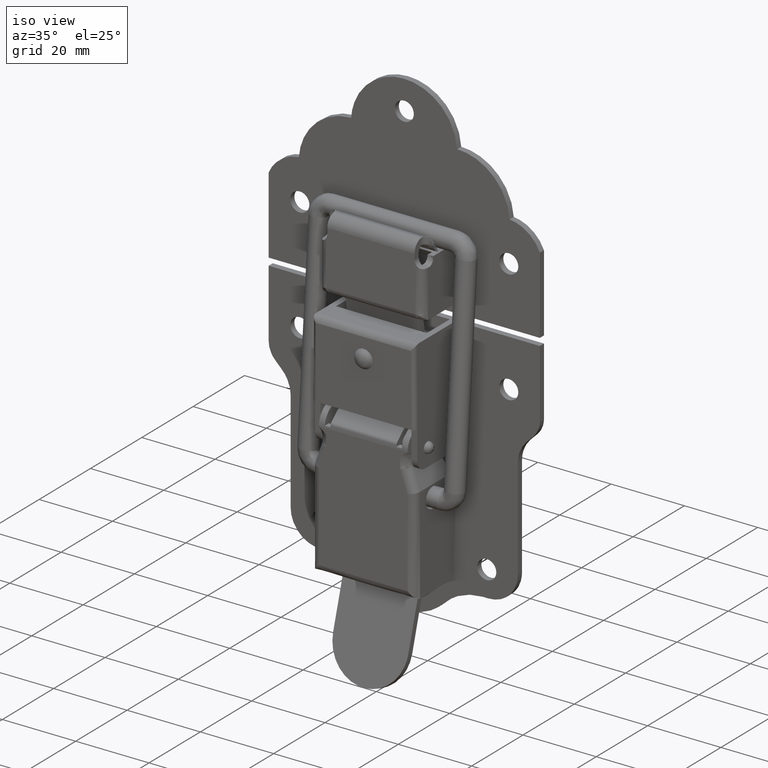
[diagram: clean part render]
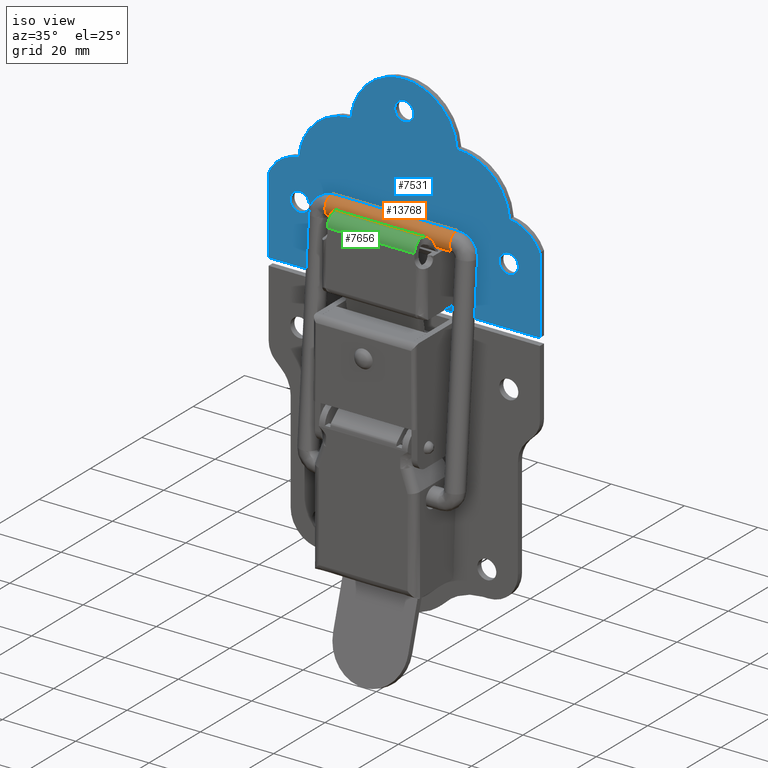
[diagram: same view with three faces highlighted in distinct colors, each labeled with its STEP entity id]
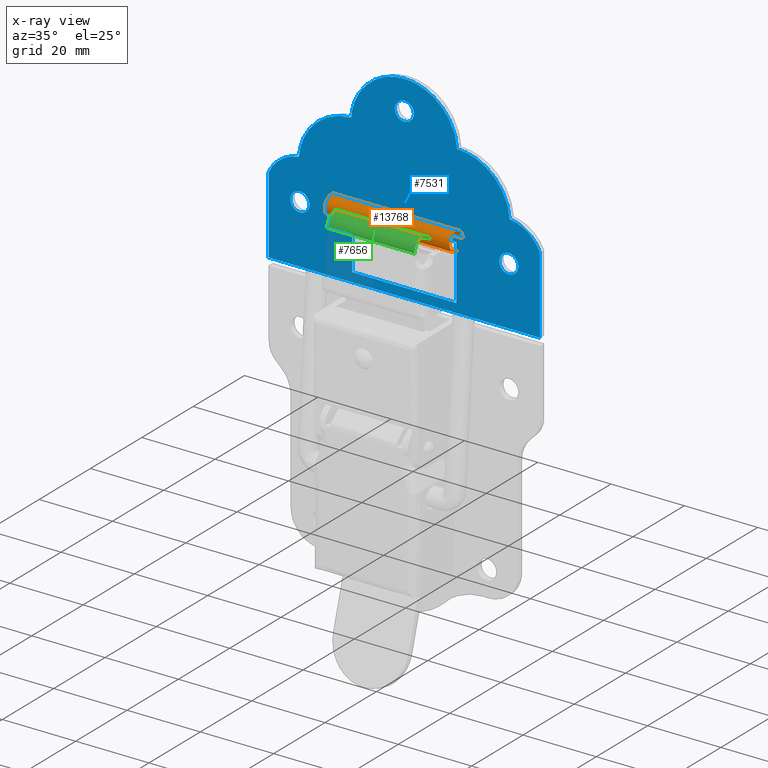
[diagram: x-ray of the same camera — body ghosted, the three highlighted faces saturated]
A machine part, iso view with three faces highlighted in distinct colors.
The next image is the same camera in x-ray (body ghosted, the three faces saturated) — at least one of them is partly hidden behind the body in this view.
Their STEP definitions:

[orange] entity #13768 — the highlighted face is a freeform B-spline surface patch.
#13595=CARTESIAN_POINT('',(16.999699999266898,9.268723217561934,48.804099728044733));
#13596=VERTEX_POINT('',#13595);
#13597=CARTESIAN_POINT('',(16.999699995442310,7.321456137218782,46.560133136138226));
#13598=VERTEX_POINT('',#13597);
#13614=CARTESIAN_POINT('',(-16.999999999998600,7.321188846626860,46.561323441497443));
#13615=VERTEX_POINT('',#13614);
#13616=CARTESIAN_POINT('',(-16.999999999998600,7.321188846626860,46.561323441497443));
#13617=CARTESIAN_POINT('',(16.999699995442310,7.321456137218782,46.560133136138226));
#13618=QUASI_UNIFORM_CURVE('',1,(#13616,#13617),.UNSPECIFIED.,.F.,.U.);
#13619=EDGE_CURVE('',#13615,#13598,#13618,.T.);
#13621=CARTESIAN_POINT('',(-16.999999999998600,9.268601316774911,48.804109904151332));
#13622=VERTEX_POINT('',#13621);
#13634=CARTESIAN_POINT('',(-16.999999999998600,9.268601316774911,48.804109904151332));
#13635=CARTESIAN_POINT('',(16.999699999266898,9.268723217561934,48.804099728044733));
#13636=QUASI_UNIFORM_CURVE('',1,(#13634,#13635),.UNSPECIFIED.,.F.,.U.);
#13637=EDGE_CURVE('',#13622,#13596,#13636,.T.);
#13642=CARTESIAN_POINT('',(-17.849992499998599,9.268754588178384,48.804097067245699));
#13643=CARTESIAN_POINT('',(-17.849992499998592,9.464657521159097,51.296409656157756));
#13644=CARTESIAN_POINT('',(-17.849992499998599,6.972344932247031,51.492312589138471));
#13645=CARTESIAN_POINT('',(-17.849992499998592,4.480032343334968,51.688215522119179));
#13646=CARTESIAN_POINT('',(-17.849992499998599,4.284129410354257,49.195902933207122));
#13647=CARTESIAN_POINT('',(-17.849992499998592,4.088226477373548,46.703590344295051));
#13648=CARTESIAN_POINT('',(-17.849992499998599,6.580539066285610,46.507687411314343));
#13649=CARTESIAN_POINT('',(-17.849992499998603,6.954937016954593,46.478258656284048));
#13650=CARTESIAN_POINT('',(-17.849992499998599,7.321456776956738,46.560131378333196));
#13651=CARTESIAN_POINT('',(17.870942312501409,9.268754588178384,48.804097067245699));
#13652=CARTESIAN_POINT('',(17.870942312501413,9.464657521159097,51.296409656157756));
#13653=CARTESIAN_POINT('',(17.870942312501409,6.972344932247031,51.492312589138471));
#13654=CARTESIAN_POINT('',(17.870942312501413,4.480032343334968,51.688215522119179));
#13655=CARTESIAN_POINT('',(17.870942312501409,4.284129410354257,49.195902933207122));
#13656=CARTESIAN_POINT('',(17.870942312501413,4.088226477373548,46.703590344295051));
#13657=CARTESIAN_POINT('',(17.870942312501409,6.580539066285610,46.507687411314343));
#13658=CARTESIAN_POINT('',(17.870942312501398,6.954937016954593,46.478258656284048));
#13659=CARTESIAN_POINT('',(17.870942312501406,7.321456776956738,46.560131378333196));
#13667=(BOUNDED_SURFACE()B_SPLINE_SURFACE(2,1,((#13642,#13651),(#13643,#13652),(#13644,#13653),(#13645,#13654),(#13646,#13655),(#13647,#13656),(#13648,#13657),(#13649,#13658),(#13650,#13659)),.UNSPECIFIED.,.F.,.F.,.U.)B_SPLINE_SURFACE_WITH_KNOTS((3,2,2,2,3),(2,2),(0.0,4.142135623730948,8.284271247461895,12.426406871192841,13.254833995939030),(0.0,35.720934812500012),.UNSPECIFIED.)GEOMETRIC_REPRESENTATION_ITEM()RATIONAL_B_SPLINE_SURFACE(((1.0,1.0),(0.707106781186548,0.707106781186548),(1.0,1.0),(0.707106781186548,0.707106781186548),(1.0,1.0),(0.707106781186548,0.707106781186548),(1.0,1.0),(0.941421356237310,0.941421356237310),(0.906274169979695,0.906274169979695)))REPRESENTATION_ITEM('')SURFACE());
#13668=CARTESIAN_POINT('',(16.999700000001400,6.385598377650863,46.530740746230812));
#13669=VERTEX_POINT('',#13668);
#13670=CARTESIAN_POINT('',(16.999699995442310,7.321456137218782,46.560133136138226));
#13671=CARTESIAN_POINT('',(16.999699996943999,7.015043462273784,46.491745111019704));
#13672=CARTESIAN_POINT('',(16.999699998499722,6.695697853314921,46.481656462202537));
#13673=CARTESIAN_POINT('',(16.999700000001400,6.385598377650863,46.530740746230812));
#13674=B_SPLINE_CURVE_WITH_KNOTS('',3,(#13670,#13671,#13672,#13673),.UNSPECIFIED.,.F.,.U.,(4,4),(0.940038078456042,1.0),.UNSPECIFIED.);
#13675=EDGE_CURVE('',#13598,#13669,#13674,.T.);
#13676=ORIENTED_EDGE('',*,*,#13675,.T.);
#13677=CARTESIAN_POINT('',(16.999700000001400,4.708916216458925,47.594594149053982));
#13678=VERTEX_POINT('',#13677);
#13679=CARTESIAN_POINT('',(16.999700000001400,6.385598377650863,46.530740746230812));
#13680=CARTESIAN_POINT('',(16.999700000001400,6.062375730403962,46.581903845438667));
#13681=CARTESIAN_POINT('',(16.999700000001400,5.749453097354254,46.697315177058449));
#13682=CARTESIAN_POINT('',(16.999700000001411,5.191373564796533,47.039238769411348));
#13683=CARTESIAN_POINT('',(16.999700000001411,4.946436245753460,47.265616497811742));
#13684=CARTESIAN_POINT('',(16.999700000001400,4.738673462690483,47.551524298051021));
#13685=CARTESIAN_POINT('',(16.999700000001400,4.723623527727283,47.572943038772280));
#13686=CARTESIAN_POINT('',(16.999700000001400,4.708916216458925,47.594594149053982));
#13687=B_SPLINE_CURVE_WITH_KNOTS('',3,(#13679,#13680,#13681,#13682,#13683,#13684,#13685,#13686),.UNSPECIFIED.,.F.,.U.,(4,2,2,4),(0.0,0.062500000000000,0.125000000000000,0.129999065576267),.UNSPECIFIED.);
#13688=EDGE_CURVE('',#13669,#13678,#13687,.T.);
#13689=ORIENTED_EDGE('',*,*,#13688,.T.);
#13690=CARTESIAN_POINT('',(16.999700000001400,7.167285620881758,51.469259254221917));
#13691=VERTEX_POINT('',#13690);
#13692=CARTESIAN_POINT('',(16.999700000001400,4.708916216458925,47.594594149053982));
#13693=CARTESIAN_POINT('',(16.999700000001400,4.539744897104424,47.843630551224173));
#13694=CARTESIAN_POINT('',(16.999700000001400,4.415903976208670,48.123410316807082));
#13695=CARTESIAN_POINT('',(16.999700000001400,4.269163115925154,48.734357576477677));
#13696=CARTESIAN_POINT('',(16.999700000001411,4.256035046560128,49.067627587789950));
#13697=CARTESIAN_POINT('',(16.999700000001400,4.358355388411102,49.714076600667639));
#13698=CARTESIAN_POINT('',(16.999700000001400,4.473763540941867,50.027001252151173));
#13699=CARTESIAN_POINT('',(16.999700000001400,4.815680752676155,50.585084835829022));
#13700=CARTESIAN_POINT('',(16.999700000001400,5.042055282057413,50.830024185964440));
#13701=CARTESIAN_POINT('',(16.999700000001400,5.571515567675712,51.214779173867747));
#13702=CARTESIAN_POINT('',(16.999700000001400,5.874393003899383,51.354443426977717));
#13703=CARTESIAN_POINT('',(16.999700000001400,6.510790834485747,51.507294360010881));
#13704=CARTESIAN_POINT('',(16.999700000001400,6.844060833477578,51.520420899619012));
#13705=CARTESIAN_POINT('',(16.999700000001400,7.167285620881758,51.469259254221917));
#13706=B_SPLINE_CURVE_WITH_KNOTS('',3,(#13692,#13693,#13694,#13695,#13696,#13697,#13698,#13699,#13700,#13701,#13702,#13703,#13704,#13705),.UNSPECIFIED.,.F.,.U.,(4,2,2,2,2,2,4),(0.129999065576267,0.187500000000000,0.250000000000000,0.312500000000000,0.375000000000000,0.437500000000000,0.500000000000000),.UNSPECIFIED.);
#13707=EDGE_CURVE('',#13678,#13691,#13706,.T.);
#13708=ORIENTED_EDGE('',*,*,#13707,.T.);
#13709=CARTESIAN_POINT('',(16.999700000001400,7.167285620881758,51.469259254221917));
#13710=CARTESIAN_POINT('',(16.999699999949389,7.490513123685790,51.418097770191217));
#13711=CARTESIAN_POINT('',(16.999699999887849,7.803441245428186,51.302688175117929));
#13712=CARTESIAN_POINT('',(16.999699999754970,8.361532194351513,50.960768036853253));
#13713=CARTESIAN_POINT('',(16.999699999683671,8.606475436575639,50.734392024635582));
#13714=CARTESIAN_POINT('',(16.999699999542131,8.991238040947698,50.204928957704588));
#13715=CARTESIAN_POINT('',(16.999699999471950,9.130906015440951,49.902050224099000));
#13716=CARTESIAN_POINT('',(16.999699999356181,9.268477415278996,49.329292172049101));
#13717=CARTESIAN_POINT('',(16.999699999308518,9.289109076931032,49.065088921452947));
#13718=CARTESIAN_POINT('',(16.999699999266898,9.268723217561934,48.804099728044733));
#13719=B_SPLINE_CURVE_WITH_KNOTS('',3,(#13709,#13710,#13711,#13712,#13713,#13714,#13715,#13716,#13717,#13718),.UNSPECIFIED.,.F.,.U.,(4,2,2,2,4),(0.500000000000000,0.562500000000000,0.625000000000000,0.687500000000000,0.737499609743001),.UNSPECIFIED.);
#13720=EDGE_CURVE('',#13691,#13596,#13719,.T.);
#13721=ORIENTED_EDGE('',*,*,#13720,.T.);
#13722=ORIENTED_EDGE('',*,*,#13637,.F.);
#13723=CARTESIAN_POINT('',(-16.999999999998600,7.167285620881119,51.469259254222052));
#13724=VERTEX_POINT('',#13723);
#13725=CARTESIAN_POINT('',(-16.999999999998600,7.167285620881119,51.469259254222052));
#13726=CARTESIAN_POINT('',(-16.999999999998600,7.813757899170484,51.366934987757979));
#13727=CARTESIAN_POINT('',(-16.999999999998600,8.414135147344718,50.999120475120463));
#13728=CARTESIAN_POINT('',(-16.999999999998600,9.145213219104900,49.993158669924490));
#13729=CARTESIAN_POINT('',(-16.999999999998600,9.313053866017386,49.391017989771342));
#13730=CARTESIAN_POINT('',(-16.999999999998600,9.268601316774911,48.804109904151332));
#13731=B_SPLINE_CURVE_WITH_KNOTS('',3,(#13725,#13726,#13727,#13728,#13729,#13730),.UNSPECIFIED.,.F.,.U.,(4,2,4),(0.500000000000000,0.625000000000000,0.737494952649776),.UNSPECIFIED.);
#13732=EDGE_CURVE('',#13724,#13622,#13731,.T.);
#13733=ORIENTED_EDGE('',*,*,#13732,.F.);
#13734=CARTESIAN_POINT('',(-16.999999999998600,4.708933641601520,47.594605954036503));
#13735=VERTEX_POINT('',#13734);
#13736=CARTESIAN_POINT('',(-16.999999999998600,4.708933641601520,47.594605954036503));
#13737=CARTESIAN_POINT('',(-16.999999999998600,4.356559938585441,48.114507122274908));
#13738=CARTESIAN_POINT('',(-16.999999999998600,4.208953026376332,48.770251065168139));
#13739=CARTESIAN_POINT('',(-16.999999999998600,4.409505366134655,50.037294182854602));
#13740=CARTESIAN_POINT('',(-16.999999999998600,4.777317617009580,50.637641582148902));
#13741=CARTESIAN_POINT('',(-16.999999999998600,5.836242805961850,51.407154694774391));
#13742=CARTESIAN_POINT('',(-16.999999999998600,6.520835059867680,51.571581875085997));
#13743=CARTESIAN_POINT('',(-16.999999999998600,7.167285620881119,51.469259254222052));
#13744=B_SPLINE_CURVE_WITH_KNOTS('',3,(#13736,#13737,#13738,#13739,#13740,#13741,#13742,#13743),.UNSPECIFIED.,.F.,.U.,(4,2,2,4),(0.129999996500081,0.250000000000000,0.375000000000000,0.500000000000000),.UNSPECIFIED.);
#13745=EDGE_CURVE('',#13735,#13724,#13744,.T.);
#13746=ORIENTED_EDGE('',*,*,#13745,.F.);
#13747=CARTESIAN_POINT('',(-16.999999999998600,6.385598377651526,46.530740746230748));
#13748=VERTEX_POINT('',#13747);
#13749=CARTESIAN_POINT('',(-16.999999999998600,6.385598377651526,46.530740746230748));
#13750=CARTESIAN_POINT('',(-16.999999999998600,5.739147816638091,46.633063367094699));
#13751=CARTESIAN_POINT('',(-16.999999999998600,5.138800417343809,47.000875617969697));
#13752=CARTESIAN_POINT('',(-16.999999999998600,4.738653609551467,47.551516701400232));
#13753=CARTESIAN_POINT('',(-16.999999999998600,4.723615884579965,47.572943397462282));
#13754=CARTESIAN_POINT('',(-16.999999999998600,4.708933641601520,47.594605954036503));
#13755=B_SPLINE_CURVE_WITH_KNOTS('',3,(#13749,#13750,#13751,#13752,#13753,#13754),.UNSPECIFIED.,.F.,.U.,(4,2,4),(0.0,0.125000000000000,0.129999996500081),.UNSPECIFIED.);
#13756=EDGE_CURVE('',#13748,#13735,#13755,.T.);
#13757=ORIENTED_EDGE('',*,*,#13756,.F.);
#13758=CARTESIAN_POINT('',(-16.999999999998600,7.321188846626860,46.561323441497443));
#13759=CARTESIAN_POINT('',(-16.999999999998600,7.014772845295724,46.493156022798232));
#13760=CARTESIAN_POINT('',(-16.999999999998600,6.695795438098125,46.481262771547918));
#13761=CARTESIAN_POINT('',(-16.999999999998600,6.385598377651526,46.530740746230748));
#13762=B_SPLINE_CURVE_WITH_KNOTS('',3,(#13758,#13759,#13760,#13761),.UNSPECIFIED.,.F.,.U.,(4,4),(0.940036179842988,1.0),.UNSPECIFIED.);
#13763=EDGE_CURVE('',#13615,#13748,#13762,.T.);
#13764=ORIENTED_EDGE('',*,*,#13763,.F.);
#13765=ORIENTED_EDGE('',*,*,#13619,.T.);
#13766=EDGE_LOOP('',(#13676,#13689,#13708,#13721,#13722,#13733,#13746,#13757,#13764,#13765));
#13767=FACE_OUTER_BOUND('',#13766,.T.);
#13768=ADVANCED_FACE('',(#13767),#13667,.T.);

[blue] entity #7531 — the highlighted face is a freeform B-spline surface patch.
#3042=CARTESIAN_POINT('',(25.918175231523769,10.900000000000119,45.306889010690611));
#3043=VERTEX_POINT('',#3042);
#3044=CARTESIAN_POINT('',(28.500000000000000,10.900000000000119,42.399999999999999));
#3045=VERTEX_POINT('',#3044);
#3046=CARTESIAN_POINT('',(25.918175231523769,10.900000000000121,45.306889010690618));
#3047=CARTESIAN_POINT('',(25.899999999999995,10.900000000000116,45.153982711684172));
#3048=CARTESIAN_POINT('',(25.899999999999999,10.900000000000119,45.0));
#3049=CARTESIAN_POINT('',(25.899999999999999,10.900000000000119,42.400000000000006));
#3050=CARTESIAN_POINT('',(28.500000000000000,10.900000000000119,42.399999999999999));
#3058=(BOUNDED_CURVE()B_SPLINE_CURVE(2,(#3046,#3047,#3048,#3049,#3050),.UNSPECIFIED.,.F.,.U.)B_SPLINE_CURVE_WITH_KNOTS((3,2,3),(0.229562473439313,0.250000000000000,0.500000000000000),.UNSPECIFIED.)CURVE()GEOMETRIC_REPRESENTATION_ITEM()RATIONAL_B_SPLINE_CURVE((0.956026754038274,0.976055948244220,1.0,0.707106781186548,1.0))REPRESENTATION_ITEM(''));
#3059=EDGE_CURVE('',#3043,#3045,#3058,.T.);
#3061=CARTESIAN_POINT('',(31.095150475863989,10.900000000000119,44.841273796671999));
#3062=VERTEX_POINT('',#3061);
#3063=CARTESIAN_POINT('',(28.500000000000000,10.900000000000119,42.399999999999999));
#3064=CARTESIAN_POINT('',(30.945835772940004,10.900000000000119,42.399999999999999));
#3065=CARTESIAN_POINT('',(31.095150475863985,10.900000000000123,44.841273796672006));
#3073=(BOUNDED_CURVE()B_SPLINE_CURVE(2,(#3063,#3064,#3065),.UNSPECIFIED.,.F.,.U.)B_SPLINE_CURVE_WITH_KNOTS((3,3),(0.500000000000000,0.739332962170511),.UNSPECIFIED.)CURVE()GEOMETRIC_REPRESENTATION_ITEM()RATIONAL_B_SPLINE_CURVE((1.0,0.719603993366883,0.976072041520055))REPRESENTATION_ITEM(''));
#3074=EDGE_CURVE('',#3045,#3062,#3073,.T.);
#3141=CARTESIAN_POINT('',(28.500000000000000,10.900000000000119,47.599999999999987));
#3142=VERTEX_POINT('',#3141);
#3143=CARTESIAN_POINT('',(28.500000000000000,10.900000000000119,47.599999999999987));
#3144=CARTESIAN_POINT('',(26.190746233576771,10.900000000000119,47.599999999999980));
#3145=CARTESIAN_POINT('',(25.918175231523769,10.900000000000121,45.306889010690618));
#3153=(BOUNDED_CURVE()B_SPLINE_CURVE(2,(#3143,#3144,#3145),.UNSPECIFIED.,.F.,.U.)B_SPLINE_CURVE_WITH_KNOTS((3,3),(0.0,0.229562473439313),.UNSPECIFIED.)CURVE()GEOMETRIC_REPRESENTATION_ITEM()RATIONAL_B_SPLINE_CURVE((1.0,0.731050832942328,0.956026754038274))REPRESENTATION_ITEM(''));
#3154=EDGE_CURVE('',#3142,#3043,#3153,.T.);
#3188=CARTESIAN_POINT('',(31.095150475863989,10.900000000000116,44.841273796672006));
#3189=CARTESIAN_POINT('',(31.100000000000001,10.900000000000116,44.920562814884789));
#3190=CARTESIAN_POINT('',(31.100000000000001,10.900000000000119,45.0));
#3191=CARTESIAN_POINT('',(31.100000000000001,10.900000000000119,47.599999999999980));
#3192=CARTESIAN_POINT('',(28.500000000000000,10.900000000000119,47.599999999999987));
#3200=(BOUNDED_CURVE()B_SPLINE_CURVE(2,(#3188,#3189,#3190,#3191,#3192),.UNSPECIFIED.,.F.,.U.)B_SPLINE_CURVE_WITH_KNOTS((3,2,3),(0.739332962170510,0.750000000000000,1.0),.UNSPECIFIED.)CURVE()GEOMETRIC_REPRESENTATION_ITEM()RATIONAL_B_SPLINE_CURVE((0.976072041520054,0.987502787819664,1.0,0.707106781186548,1.0))REPRESENTATION_ITEM(''));
#3201=EDGE_CURVE('',#3062,#3142,#3200,.T.);
#3228=CARTESIAN_POINT('',(-2.581824768476230,10.900000000000119,75.306889010690611));
#3229=VERTEX_POINT('',#3228);
#3230=CARTESIAN_POINT('',(0.0,10.900000000000119,72.399999999999991));
#3231=VERTEX_POINT('',#3230);
#3232=CARTESIAN_POINT('',(-2.581824768476230,10.900000000000116,75.306889010690597));
#3233=CARTESIAN_POINT('',(-2.600000000000000,10.900000000000118,75.153982711684179));
#3234=CARTESIAN_POINT('',(-2.600000000000000,10.900000000000119,75.0));
#3235=CARTESIAN_POINT('',(-2.600000000000001,10.900000000000119,72.399999999999991));
#3236=CARTESIAN_POINT('',(0.0,10.900000000000119,72.399999999999991));
#3244=(BOUNDED_CURVE()B_SPLINE_CURVE(2,(#3232,#3233,#3234,#3235,#3236),.UNSPECIFIED.,.F.,.U.)B_SPLINE_CURVE_WITH_KNOTS((3,2,3),(0.229562473439314,0.250000000000000,0.500000000000000),.UNSPECIFIED.)CURVE()GEOMETRIC_REPRESENTATION_ITEM()RATIONAL_B_SPLINE_CURVE((0.956026754038276,0.976055948244221,1.0,0.707106781186548,1.0))REPRESENTATION_ITEM(''));
#3245=EDGE_CURVE('',#3229,#3231,#3244,.T.);
#3247=CARTESIAN_POINT('',(2.595150475863987,10.900000000000119,74.841273796671999));
#3248=VERTEX_POINT('',#3247);
#3249=CARTESIAN_POINT('',(0.0,10.900000000000119,72.399999999999991));
#3250=CARTESIAN_POINT('',(2.445835772940012,10.900000000000119,72.400000000000006));
#3251=CARTESIAN_POINT('',(2.595150475863987,10.900000000000123,74.841273796671999));
#3259=(BOUNDED_CURVE()B_SPLINE_CURVE(2,(#3249,#3250,#3251),.UNSPECIFIED.,.F.,.U.)B_SPLINE_CURVE_WITH_KNOTS((3,3),(0.500000000000000,0.739332962170511),.UNSPECIFIED.)CURVE()GEOMETRIC_REPRESENTATION_ITEM()RATIONAL_B_SPLINE_CURVE((1.0,0.719603993366883,0.976072041520055))REPRESENTATION_ITEM(''));
#3260=EDGE_CURVE('',#3231,#3248,#3259,.T.);
#3327=CARTESIAN_POINT('',(0.0,10.900000000000119,77.600000000000009));
#3328=VERTEX_POINT('',#3327);
#3329=CARTESIAN_POINT('',(0.0,10.900000000000119,77.600000000000009));
#3330=CARTESIAN_POINT('',(-2.309253766423246,10.900000000000119,77.600000000000009));
#3331=CARTESIAN_POINT('',(-2.581824768476230,10.900000000000116,75.306889010690597));
#3339=(BOUNDED_CURVE()B_SPLINE_CURVE(2,(#3329,#3330,#3331),.UNSPECIFIED.,.F.,.U.)B_SPLINE_CURVE_WITH_KNOTS((3,3),(0.0,0.229562473439314),.UNSPECIFIED.)CURVE()GEOMETRIC_REPRESENTATION_ITEM()RATIONAL_B_SPLINE_CURVE((1.0,0.731050832942326,0.956026754038276))REPRESENTATION_ITEM(''));
#3340=EDGE_CURVE('',#3328,#3229,#3339,.T.);
#3374=CARTESIAN_POINT('',(2.595150475863987,10.900000000000119,74.841273796671999));
#3375=CARTESIAN_POINT('',(2.600000000000000,10.900000000000119,74.920562814884804));
#3376=CARTESIAN_POINT('',(2.600000000000000,10.900000000000119,75.0));
#3377=CARTESIAN_POINT('',(2.600000000000001,10.900000000000119,77.600000000000009));
#3378=CARTESIAN_POINT('',(0.0,10.900000000000119,77.600000000000009));
#3386=(BOUNDED_CURVE()B_SPLINE_CURVE(2,(#3374,#3375,#3376,#3377,#3378),.UNSPECIFIED.,.F.,.U.)B_SPLINE_CURVE_WITH_KNOTS((3,2,3),(0.739332962170510,0.750000000000000,1.0),.UNSPECIFIED.)CURVE()GEOMETRIC_REPRESENTATION_ITEM()RATIONAL_B_SPLINE_CURVE((0.976072041520053,0.987502787819664,1.0,0.707106781186548,1.0))REPRESENTATION_ITEM(''));
#3387=EDGE_CURVE('',#3248,#3328,#3386,.T.);
#3414=CARTESIAN_POINT('',(-31.081824768476231,10.900000000000119,45.306889010690611));
#3415=VERTEX_POINT('',#3414);
#3416=CARTESIAN_POINT('',(-28.500000000000000,10.900000000000119,42.399999999999999));
#3417=VERTEX_POINT('',#3416);
#3418=CARTESIAN_POINT('',(-31.081824768476228,10.900000000000123,45.306889010690611));
#3419=CARTESIAN_POINT('',(-31.100000000000005,10.900000000000119,45.153982711684172));
#3420=CARTESIAN_POINT('',(-31.100000000000001,10.900000000000119,45.0));
#3421=CARTESIAN_POINT('',(-31.100000000000001,10.900000000000119,42.400000000000006));
#3422=CARTESIAN_POINT('',(-28.500000000000000,10.900000000000119,42.399999999999999));
#3430=(BOUNDED_CURVE()B_SPLINE_CURVE(2,(#3418,#3419,#3420,#3421,#3422),.UNSPECIFIED.,.F.,.U.)B_SPLINE_CURVE_WITH_KNOTS((3,2,3),(0.229562473439314,0.250000000000000,0.500000000000000),.UNSPECIFIED.)CURVE()GEOMETRIC_REPRESENTATION_ITEM()RATIONAL_B_SPLINE_CURVE((0.956026754038275,0.976055948244220,1.0,0.707106781186548,1.0))REPRESENTATION_ITEM(''));
#3431=EDGE_CURVE('',#3415,#3417,#3430,.T.);
#3433=CARTESIAN_POINT('',(-25.904849524136011,10.900000000000119,44.841273796671999));
#3434=VERTEX_POINT('',#3433);
#3435=CARTESIAN_POINT('',(-28.500000000000000,10.900000000000119,42.399999999999999));
#3436=CARTESIAN_POINT('',(-26.054164227059982,10.900000000000119,42.399999999999999));
#3437=CARTESIAN_POINT('',(-25.904849524136008,10.900000000000123,44.841273796672006));
#3445=(BOUNDED_CURVE()B_SPLINE_CURVE(2,(#3435,#3436,#3437),.UNSPECIFIED.,.F.,.U.)B_SPLINE_CURVE_WITH_KNOTS((3,3),(0.500000000000000,0.739332962170511),.UNSPECIFIED.)CURVE()GEOMETRIC_REPRESENTATION_ITEM()RATIONAL_B_SPLINE_CURVE((1.0,0.719603993366883,0.976072041520055))REPRESENTATION_ITEM(''));
#3446=EDGE_CURVE('',#3417,#3434,#3445,.T.);
#3513=CARTESIAN_POINT('',(-28.500000000000000,10.900000000000119,47.599999999999987));
#3514=VERTEX_POINT('',#3513);
#3515=CARTESIAN_POINT('',(-28.500000000000000,10.900000000000119,47.599999999999987));
#3516=CARTESIAN_POINT('',(-30.809253766423232,10.900000000000121,47.599999999999994));
#3517=CARTESIAN_POINT('',(-31.081824768476231,10.900000000000121,45.306889010690618));
#3525=(BOUNDED_CURVE()B_SPLINE_CURVE(2,(#3515,#3516,#3517),.UNSPECIFIED.,.F.,.U.)B_SPLINE_CURVE_WITH_KNOTS((3,3),(0.0,0.229562473439314),.UNSPECIFIED.)CURVE()GEOMETRIC_REPRESENTATION_ITEM()RATIONAL_B_SPLINE_CURVE((1.0,0.731050832942327,0.956026754038275))REPRESENTATION_ITEM(''));
#3526=EDGE_CURVE('',#3514,#3415,#3525,.T.);
#3560=CARTESIAN_POINT('',(-25.904849524136015,10.900000000000123,44.841273796671999));
#3561=CARTESIAN_POINT('',(-25.899999999999999,10.900000000000116,44.920562814884796));
#3562=CARTESIAN_POINT('',(-25.899999999999999,10.900000000000119,45.0));
#3563=CARTESIAN_POINT('',(-25.899999999999999,10.900000000000119,47.599999999999980));
#3564=CARTESIAN_POINT('',(-28.500000000000000,10.900000000000119,47.599999999999987));
#3572=(BOUNDED_CURVE()B_SPLINE_CURVE(2,(#3560,#3561,#3562,#3563,#3564),.UNSPECIFIED.,.F.,.U.)B_SPLINE_CURVE_WITH_KNOTS((3,2,3),(0.739332962170510,0.750000000000000,1.0),.UNSPECIFIED.)CURVE()GEOMETRIC_REPRESENTATION_ITEM()RATIONAL_B_SPLINE_CURVE((0.976072041520054,0.987502787819664,1.0,0.707106781186548,1.0))REPRESENTATION_ITEM(''));
#3573=EDGE_CURVE('',#3434,#3514,#3572,.T.);
#6800=CARTESIAN_POINT('',(14.199999999999999,10.900000000000000,46.500000000000000));
#6801=VERTEX_POINT('',#6800);
#6807=CARTESIAN_POINT('',(-14.199999999999999,10.900000000000000,46.500000000000000));
#6808=VERTEX_POINT('',#6807);
#6809=CARTESIAN_POINT('',(-14.199999999999999,10.900000000000000,46.500000000000000));
#6810=CARTESIAN_POINT('',(14.199999999999999,10.900000000000000,46.500000000000000));
#6811=QUASI_UNIFORM_CURVE('',1,(#6809,#6810),.UNSPECIFIED.,.F.,.U.);
#6812=EDGE_CURVE('',#6808,#6801,#6811,.T.);
#7133=CARTESIAN_POINT('',(37.0,10.900000000000119,50.000531814607101));
#7134=VERTEX_POINT('',#7133);
#7135=CARTESIAN_POINT('',(28.750459302145401,10.900000000000119,56.000243559326698));
#7136=VERTEX_POINT('',#7135);
#7137=CARTESIAN_POINT('',(37.000000000000092,10.900000000000119,50.000531814607143));
#7138=CARTESIAN_POINT('',(34.653985682245050,10.900000000000119,55.446158566480449));
#7139=CARTESIAN_POINT('',(28.750459302145401,10.900000000000119,56.000243559326677));
#7147=(BOUNDED_CURVE()B_SPLINE_CURVE(2,(#7137,#7138,#7139),.UNSPECIFIED.,.F.,.U.)CURVE()GEOMETRIC_REPRESENTATION_ITEM()QUASI_UNIFORM_CURVE()RATIONAL_B_SPLINE_CURVE((1.0,0.860157743170858,1.0))REPRESENTATION_ITEM(''));
#7148=EDGE_CURVE('',#7134,#7136,#7147,.T.);
#7185=CARTESIAN_POINT('',(37.0,10.900000000000119,29.0));
#7186=VERTEX_POINT('',#7185);
#7187=CARTESIAN_POINT('',(37.0,10.900000000000119,29.0));
#7188=CARTESIAN_POINT('',(37.0,10.900000000000119,50.000531814607101));
#7189=QUASI_UNIFORM_CURVE('',1,(#7187,#7188),.UNSPECIFIED.,.F.,.U.);
#7190=EDGE_CURVE('',#7186,#7134,#7189,.T.);
#7213=CARTESIAN_POINT('',(-37.0,10.900000000000119,29.0));
#7214=VERTEX_POINT('',#7213);
#7215=CARTESIAN_POINT('',(-37.0,10.900000000000119,29.0));
#7216=CARTESIAN_POINT('',(37.0,10.900000000000119,29.0));
#7217=QUASI_UNIFORM_CURVE('',1,(#7215,#7216),.UNSPECIFIED.,.F.,.U.);
#7218=EDGE_CURVE('',#7214,#7186,#7217,.T.);
#7241=CARTESIAN_POINT('',(-37.0,10.900000000000119,50.000531814607399));
#7242=VERTEX_POINT('',#7241);
#7243=CARTESIAN_POINT('',(-37.0,10.900000000000119,50.000531814607399));
#7244=CARTESIAN_POINT('',(-37.0,10.900000000000119,29.0));
#7245=QUASI_UNIFORM_CURVE('',1,(#7243,#7244),.UNSPECIFIED.,.F.,.U.);
#7246=EDGE_CURVE('',#7242,#7214,#7245,.T.);
#7278=CARTESIAN_POINT('',(-28.749591841258251,10.900000000000119,56.000324938145397));
#7279=VERTEX_POINT('',#7278);
#7280=CARTESIAN_POINT('',(-28.749591841258258,10.900000000000119,56.000324938145397));
#7281=CARTESIAN_POINT('',(-34.653752716378712,10.900000000000121,55.446699332640065));
#7282=CARTESIAN_POINT('',(-36.999999999999979,10.900000000000119,50.000531814607392));
#7290=(BOUNDED_CURVE()B_SPLINE_CURVE(2,(#7280,#7281,#7282),.UNSPECIFIED.,.F.,.U.)CURVE()GEOMETRIC_REPRESENTATION_ITEM()QUASI_UNIFORM_CURVE()RATIONAL_B_SPLINE_CURVE((1.0,0.860135523753254,1.0))REPRESENTATION_ITEM(''));
#7291=EDGE_CURVE('',#7279,#7242,#7290,.T.);
#7331=CARTESIAN_POINT('',(-14.499448533091400,10.900000000000119,69.500399288528001));
#7332=VERTEX_POINT('',#7331);
#7333=CARTESIAN_POINT('',(-14.499448533091410,10.900000000000119,69.500399288527987));
#7334=CARTESIAN_POINT('',(-27.831573734424918,10.900000000000119,69.302281774969700));
#7335=CARTESIAN_POINT('',(-28.749591841258241,10.900000000000119,56.000324938145397));
#7343=(BOUNDED_CURVE()B_SPLINE_CURVE(2,(#7333,#7334,#7335),.UNSPECIFIED.,.F.,.U.)CURVE()GEOMETRIC_REPRESENTATION_ITEM()QUASI_UNIFORM_CURVE()RATIONAL_B_SPLINE_CURVE((1.0,0.736092947840625,1.0))REPRESENTATION_ITEM(''));
#7344=EDGE_CURVE('',#7332,#7279,#7343,.T.);
#7388=CARTESIAN_POINT('',(14.431527304478459,10.900000000000119,69.499259627616894));
#7389=VERTEX_POINT('',#7388);
#7390=CARTESIAN_POINT('',(14.431527304478459,10.900000000000119,69.499259627616880));
#7391=CARTESIAN_POINT('',(13.498950715773795,10.900000000000121,82.999466915684152));
#7392=CARTESIAN_POINT('',(-0.033428810030874,10.900000000000119,82.999999988749721));
#7393=CARTESIAN_POINT('',(-13.565808335835557,10.900000000000121,83.000533061815304));
#7394=CARTESIAN_POINT('',(-14.499448533091391,10.900000000000119,69.500399288528001));
#7402=(BOUNDED_CURVE()B_SPLINE_CURVE(2,(#7390,#7391,#7392,#7393,#7394),.UNSPECIFIED.,.F.,.U.)B_SPLINE_CURVE_WITH_KNOTS((3,2,3),(0.0,0.500000000000000,1.0),.UNSPECIFIED.)CURVE()GEOMETRIC_REPRESENTATION_ITEM()RATIONAL_B_SPLINE_CURVE((1.0,0.731079255547110,1.0,0.731079255547110,1.0))REPRESENTATION_ITEM(''));
#7403=EDGE_CURVE('',#7389,#7332,#7402,.T.);
#7445=CARTESIAN_POINT('',(28.750459302145419,10.900000000000119,56.000243559326698));
#7446=CARTESIAN_POINT('',(27.826402618885528,10.900000000000118,69.363893062423045));
#7447=CARTESIAN_POINT('',(14.431527304478459,10.900000000000119,69.499259627616937));
#7455=(BOUNDED_CURVE()B_SPLINE_CURVE(2,(#7445,#7446,#7447),.UNSPECIFIED.,.F.,.U.)CURVE()GEOMETRIC_REPRESENTATION_ITEM()QUASI_UNIFORM_CURVE()RATIONAL_B_SPLINE_CURVE((1.0,0.734527076236413,1.0))REPRESENTATION_ITEM(''));
#7456=EDGE_CURVE('',#7136,#7389,#7455,.T.);
#7476=CARTESIAN_POINT('',(-40.696299856573653,10.900000000000000,85.697299883573251));
#7477=CARTESIAN_POINT('',(40.696301841408307,10.900000000000000,85.697299883573251));
#7478=CARTESIAN_POINT('',(-40.696299856573653,10.900000000000000,26.302698656829278));
#7479=CARTESIAN_POINT('',(40.696301841408307,10.900000000000000,26.302698656829278));
#7480=B_SPLINE_SURFACE_WITH_KNOTS('',1,1,((#7476,#7478),(#7477,#7479)),.UNSPECIFIED.,.F.,.F.,.U.,(2,2),(2,2),(0.0,81.392601697981959),(0.0,59.394601226743973),.UNSPECIFIED.);
#7481=ORIENTED_EDGE('',*,*,#7456,.T.);
#7482=ORIENTED_EDGE('',*,*,#7403,.T.);
#7483=ORIENTED_EDGE('',*,*,#7344,.T.);
#7484=ORIENTED_EDGE('',*,*,#7291,.T.);
#7485=ORIENTED_EDGE('',*,*,#7246,.T.);
#7486=ORIENTED_EDGE('',*,*,#7218,.T.);
#7487=ORIENTED_EDGE('',*,*,#7190,.T.);
#7488=ORIENTED_EDGE('',*,*,#7148,.T.);
#7489=EDGE_LOOP('',(#7481,#7482,#7483,#7484,#7485,#7486,#7487,#7488));
#7490=FACE_OUTER_BOUND('',#7489,.T.);
#7491=CARTESIAN_POINT('',(-14.199999999999999,10.900000000000000,31.500000000000000));
#7492=VERTEX_POINT('',#7491);
#7493=CARTESIAN_POINT('',(14.199999999999999,10.900000000000000,31.500000000000000));
#7494=VERTEX_POINT('',#7493);
#7495=CARTESIAN_POINT('',(-14.199999999999999,10.900000000000000,31.500000000000000));
#7496=CARTESIAN_POINT('',(14.199999999999999,10.900000000000000,31.500000000000000));
#7497=QUASI_UNIFORM_CURVE('',1,(#7495,#7496),.UNSPECIFIED.,.F.,.U.);
#7498=EDGE_CURVE('',#7492,#7494,#7497,.T.);
#7499=ORIENTED_EDGE('',*,*,#7498,.F.);
#7500=CARTESIAN_POINT('',(-14.199999999999999,10.900000000000000,46.500000000000000));
#7501=CARTESIAN_POINT('',(-14.199999999999999,10.900000000000000,31.500000000000000));
#7502=QUASI_UNIFORM_CURVE('',1,(#7500,#7501),.UNSPECIFIED.,.F.,.U.);
#7503=EDGE_CURVE('',#6808,#7492,#7502,.T.);
#7504=ORIENTED_EDGE('',*,*,#7503,.F.);
#7505=ORIENTED_EDGE('',*,*,#6812,.T.);
#7506=CARTESIAN_POINT('',(14.199999999999999,10.900000000000000,46.500000000000000));
#7507=CARTESIAN_POINT('',(14.199999999999999,10.900000000000000,31.500000000000000));
#7508=QUASI_UNIFORM_CURVE('',1,(#7506,#7507),.UNSPECIFIED.,.F.,.U.);
#7509=EDGE_CURVE('',#6801,#7494,#7508,.T.);
#7510=ORIENTED_EDGE('',*,*,#7509,.T.);
#7511=EDGE_LOOP('',(#7499,#7504,#7505,#7510));
#7512=FACE_BOUND('',#7511,.T.);
#7513=ORIENTED_EDGE('',*,*,#3446,.F.);
#7514=ORIENTED_EDGE('',*,*,#3431,.F.);
#7515=ORIENTED_EDGE('',*,*,#3526,.F.);
#7516=ORIENTED_EDGE('',*,*,#3573,.F.);
#7517=EDGE_LOOP('',(#7513,#7514,#7515,#7516));
#7518=FACE_BOUND('',#7517,.T.);
#7519=ORIENTED_EDGE('',*,*,#3260,.F.);
#7520=ORIENTED_EDGE('',*,*,#3245,.F.);
#7521=ORIENTED_EDGE('',*,*,#3340,.F.);
#7522=ORIENTED_EDGE('',*,*,#3387,.F.);
#7523=EDGE_LOOP('',(#7519,#7520,#7521,#7522));
#7524=FACE_BOUND('',#7523,.T.);
#7525=ORIENTED_EDGE('',*,*,#3074,.F.);
#7526=ORIENTED_EDGE('',*,*,#3059,.F.);
#7527=ORIENTED_EDGE('',*,*,#3154,.F.);
#7528=ORIENTED_EDGE('',*,*,#3201,.F.);
#7529=EDGE_LOOP('',(#7525,#7526,#7527,#7528));
#7530=FACE_BOUND('',#7529,.T.);
#7531=ADVANCED_FACE('',(#7490,#7512,#7518,#7524,#7530),#7480,.F.);

[green] entity #7656 — the highlighted face is a freeform B-spline surface patch.
#4815=CARTESIAN_POINT('',(-12.199999999999999,1.232737905309114,50.982191568256113));
#4816=VERTEX_POINT('',#4815);
#4858=CARTESIAN_POINT('',(-11.900000000000000,0.300000000000078,50.940088778918387));
#4859=VERTEX_POINT('',#4858);
#4865=CARTESIAN_POINT('',(-12.199999999999999,1.232737905309116,50.982191568256113));
#4866=CARTESIAN_POINT('',(-12.151142658142600,1.164643166097701,50.989791022634591));
#4867=CARTESIAN_POINT('',(-12.108153369254749,1.093503411587204,50.995372699260081));
#4868=CARTESIAN_POINT('',(-12.033539996812060,0.945274954393446,51.001276334195722));
#4869=CARTESIAN_POINT('',(-12.001873948958490,0.868057382886043,51.001601249161098));
#4870=CARTESIAN_POINT('',(-11.950582645777120,0.707893022119175,50.995616281640586));
#4871=CARTESIAN_POINT('',(-11.931637464419341,0.627133599186224,50.989388924581426));
#4872=CARTESIAN_POINT('',(-11.906344538706310,0.464437542606076,50.970043844056988));
#4873=CARTESIAN_POINT('',(-11.900000000000000,0.382500055160402,50.956929032159579));
#4874=CARTESIAN_POINT('',(-11.900000000000000,0.300000000000078,50.940088778918387));
#4875=B_SPLINE_CURVE_WITH_KNOTS('',3,(#4865,#4866,#4867,#4868,#4869,#4870,#4871,#4872,#4873,#4874),.UNSPECIFIED.,.F.,.U.,(4,2,2,2,4),(0.0,0.250000000000000,0.500000000000000,0.750000000000000,1.0),.UNSPECIFIED.);
#4876=EDGE_CURVE('',#4816,#4859,#4875,.T.);
#5265=CARTESIAN_POINT('',(11.900000000000000,0.300000000000091,50.940088778918387));
#5266=VERTEX_POINT('',#5265);
#5267=CARTESIAN_POINT('',(12.199999999999999,1.232737905309128,50.982191568256113));
#5268=VERTEX_POINT('',#5267);
#5269=CARTESIAN_POINT('',(11.900000000000000,0.300000000000091,50.940088778918387));
#5270=CARTESIAN_POINT('',(11.900000000000000,0.382500456809763,50.956929114145922));
#5271=CARTESIAN_POINT('',(11.906344628177999,0.464486525607898,50.970053622950942));
#5272=CARTESIAN_POINT('',(11.931681776996021,0.627370146221954,50.989413089182001));
#5273=CARTESIAN_POINT('',(11.950743403288920,0.708492534954912,50.995653099260601));
#5274=CARTESIAN_POINT('',(12.002059978741670,0.868540100854223,51.001604774168982));
#5275=CARTESIAN_POINT('',(12.033642104352420,0.945494908026848,51.001270853933008));
#5276=CARTESIAN_POINT('',(12.108184900080539,1.093548915979853,50.995367600988658));
#5277=CARTESIAN_POINT('',(12.151145898136800,1.164647681827622,50.989790518673722));
#5278=CARTESIAN_POINT('',(12.199999999999999,1.232737905309124,50.982191568256113));
#5279=B_SPLINE_CURVE_WITH_KNOTS('',3,(#5269,#5270,#5271,#5272,#5273,#5274,#5275,#5276,#5277,#5278),.UNSPECIFIED.,.F.,.U.,(4,2,2,2,4),(0.0,0.250000000000000,0.500000000000000,0.750000000000000,1.0),.UNSPECIFIED.);
#5280=EDGE_CURVE('',#5266,#5268,#5279,.T.);
#5705=CARTESIAN_POINT('',(-12.199999999999999,3.435010641695265,49.604983184496803));
#5706=VERTEX_POINT('',#5705);
#5733=CARTESIAN_POINT('',(-12.199999999999999,3.435010641695259,49.604983184496803));
#5734=CARTESIAN_POINT('',(-12.199999999999998,2.664569747880216,50.822397421288507));
#5735=CARTESIAN_POINT('',(-12.199999999999999,1.232737905309113,50.982191568256098));
#5743=(BOUNDED_CURVE()B_SPLINE_CURVE(2,(#5733,#5734,#5735),.UNSPECIFIED.,.F.,.U.)CURVE()GEOMETRIC_REPRESENTATION_ITEM()QUASI_UNIFORM_CURVE()RATIONAL_B_SPLINE_CURVE((1.0,0.901438539568120,1.0))REPRESENTATION_ITEM(''));
#5744=EDGE_CURVE('',#5706,#4816,#5743,.T.);
#5802=CARTESIAN_POINT('',(12.199999999999999,3.435010641695265,49.604983184496803));
#5803=VERTEX_POINT('',#5802);
#5877=CARTESIAN_POINT('',(12.199999999999999,1.232737905309126,50.982191568256098));
#5878=CARTESIAN_POINT('',(12.200000000000001,2.664569747880221,50.822397421288493));
#5879=CARTESIAN_POINT('',(12.199999999999999,3.435010641695259,49.604983184496788));
#5887=(BOUNDED_CURVE()B_SPLINE_CURVE(2,(#5877,#5878,#5879),.UNSPECIFIED.,.F.,.U.)CURVE()GEOMETRIC_REPRESENTATION_ITEM()QUASI_UNIFORM_CURVE()RATIONAL_B_SPLINE_CURVE((1.0,0.901438539568120,1.0))REPRESENTATION_ITEM(''));
#5888=EDGE_CURVE('',#5268,#5803,#5887,.T.);
#6353=CARTESIAN_POINT('',(11.900000000000000,-2.099999999999910,48.000701087578598));
#6354=VERTEX_POINT('',#6353);
#6355=CARTESIAN_POINT('',(11.900000000000000,0.300000000000088,50.940088778918408));
#6356=CARTESIAN_POINT('',(11.900000000000000,-2.099999999999909,50.450190830361777));
#6357=CARTESIAN_POINT('',(11.900000000000000,-2.099999999999909,48.000701087578598));
#6365=(BOUNDED_CURVE()B_SPLINE_CURVE(2,(#6355,#6356,#6357),.UNSPECIFIED.,.F.,.U.)CURVE()GEOMETRIC_REPRESENTATION_ITEM()QUASI_UNIFORM_CURVE()RATIONAL_B_SPLINE_CURVE((1.0,0.774596669241484,1.0))REPRESENTATION_ITEM(''));
#6366=EDGE_CURVE('',#5266,#6354,#6365,.T.);
#6419=CARTESIAN_POINT('',(-11.900000000000000,-2.099999999999910,48.000701087578598));
#6420=VERTEX_POINT('',#6419);
#6421=CARTESIAN_POINT('',(-11.900000000000000,0.300000000000075,50.940088778918408));
#6422=CARTESIAN_POINT('',(-11.900000000000000,-2.099999999999909,50.450190830361770));
#6423=CARTESIAN_POINT('',(-11.900000000000000,-2.099999999999909,48.000701087578598));
#6431=(BOUNDED_CURVE()B_SPLINE_CURVE(2,(#6421,#6422,#6423),.UNSPECIFIED.,.F.,.U.)CURVE()GEOMETRIC_REPRESENTATION_ITEM()QUASI_UNIFORM_CURVE()RATIONAL_B_SPLINE_CURVE((1.0,0.774596669241485,1.0))REPRESENTATION_ITEM(''));
#6432=EDGE_CURVE('',#4859,#6420,#6431,.T.);
#7620=CARTESIAN_POINT('',(-12.810000000000000,-2.098473800111078,47.905020002473542));
#7621=CARTESIAN_POINT('',(12.825250000000000,-2.098473800111078,47.905020002473542));
#7622=CARTESIAN_POINT('',(-12.809999999999997,-2.174581971749395,50.290113758269435));
#7623=CARTESIAN_POINT('',(12.825250000000011,-2.174581971749395,50.290113758269435));
#7624=CARTESIAN_POINT('',(-12.810000000000000,0.132261372150086,50.900800637474603));
#7625=CARTESIAN_POINT('',(12.825250000000000,0.132261372150086,50.900800637474603));
#7626=CARTESIAN_POINT('',(-12.809999999999997,2.439104716049571,51.511487516679772));
#7627=CARTESIAN_POINT('',(12.825250000000011,2.439104716049571,51.511487516679772));
#7628=CARTESIAN_POINT('',(-12.810000000000000,3.553066572520525,49.401143075586212));
#7629=CARTESIAN_POINT('',(12.825250000000000,3.553066572520525,49.401143075586212));
#7637=(BOUNDED_SURFACE()B_SPLINE_SURFACE(1,2,((#7620,#7622,#7624,#7626,#7628),(#7621,#7623,#7625,#7627,#7629)),.UNSPECIFIED.,.F.,.F.,.U.)B_SPLINE_SURFACE_WITH_KNOTS((2,2),(3,2,3),(0.0,25.635250000000010),(0.0,4.190587601058483,8.381175202116966),.UNSPECIFIED.)GEOMETRIC_REPRESENTATION_ITEM()RATIONAL_B_SPLINE_SURFACE(((1.0,0.782608156852414,1.0,0.782608156852414,1.0),(1.0,0.782608156852414,1.0,0.782608156852414,1.0)))REPRESENTATION_ITEM('')SURFACE());
#7638=ORIENTED_EDGE('',*,*,#6366,.F.);
#7639=ORIENTED_EDGE('',*,*,#5280,.T.);
#7640=ORIENTED_EDGE('',*,*,#5888,.T.);
#7641=CARTESIAN_POINT('',(-12.199999999999999,3.435010641695265,49.604983184496803));
#7642=CARTESIAN_POINT('',(12.199999999999999,3.435010641695265,49.604983184496803));
#7643=QUASI_UNIFORM_CURVE('',1,(#7641,#7642),.UNSPECIFIED.,.F.,.U.);
#7644=EDGE_CURVE('',#5706,#5803,#7643,.T.);
#7645=ORIENTED_EDGE('',*,*,#7644,.F.);
#7646=ORIENTED_EDGE('',*,*,#5744,.T.);
#7647=ORIENTED_EDGE('',*,*,#4876,.T.);
#7648=ORIENTED_EDGE('',*,*,#6432,.T.);
#7649=CARTESIAN_POINT('',(11.900000000000000,-2.099999999999910,48.000701087578598));
#7650=CARTESIAN_POINT('',(-11.900000000000000,-2.099999999999910,48.000701087578598));
#7651=QUASI_UNIFORM_CURVE('',1,(#7649,#7650),.UNSPECIFIED.,.F.,.U.);
#7652=EDGE_CURVE('',#6354,#6420,#7651,.T.);
#7653=ORIENTED_EDGE('',*,*,#7652,.F.);
#7654=EDGE_LOOP('',(#7638,#7639,#7640,#7645,#7646,#7647,#7648,#7653));
#7655=FACE_OUTER_BOUND('',#7654,.T.);
#7656=ADVANCED_FACE('',(#7655),#7637,.T.);